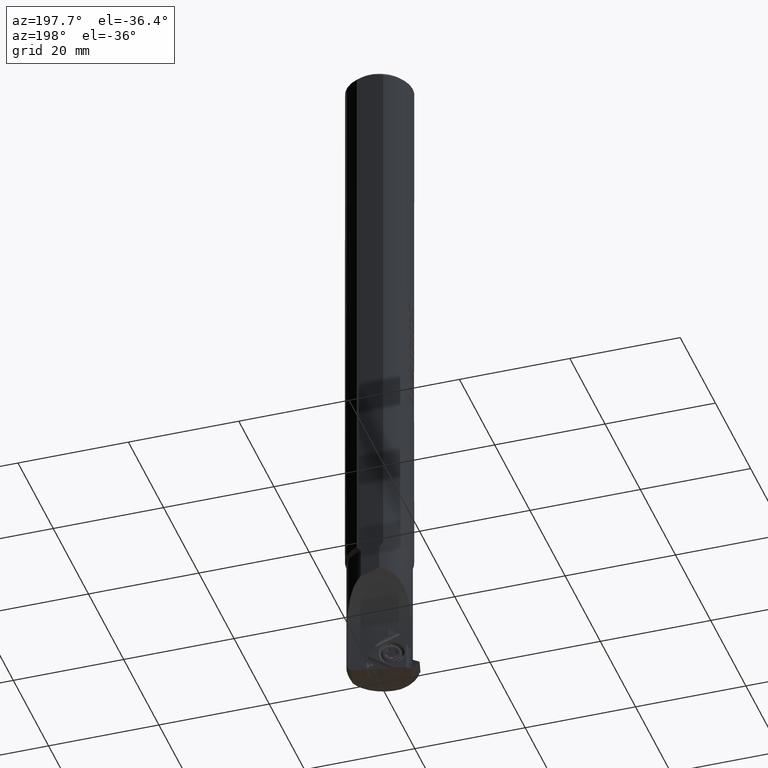
[diagram: clean part render]
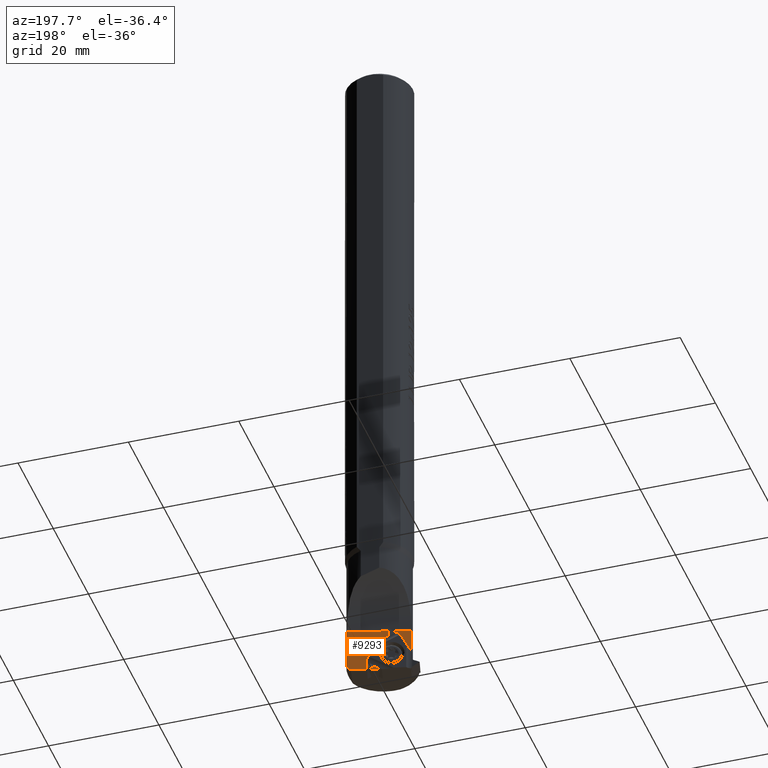
[diagram: same view with one face highlighted and labeled with its STEP entity id]
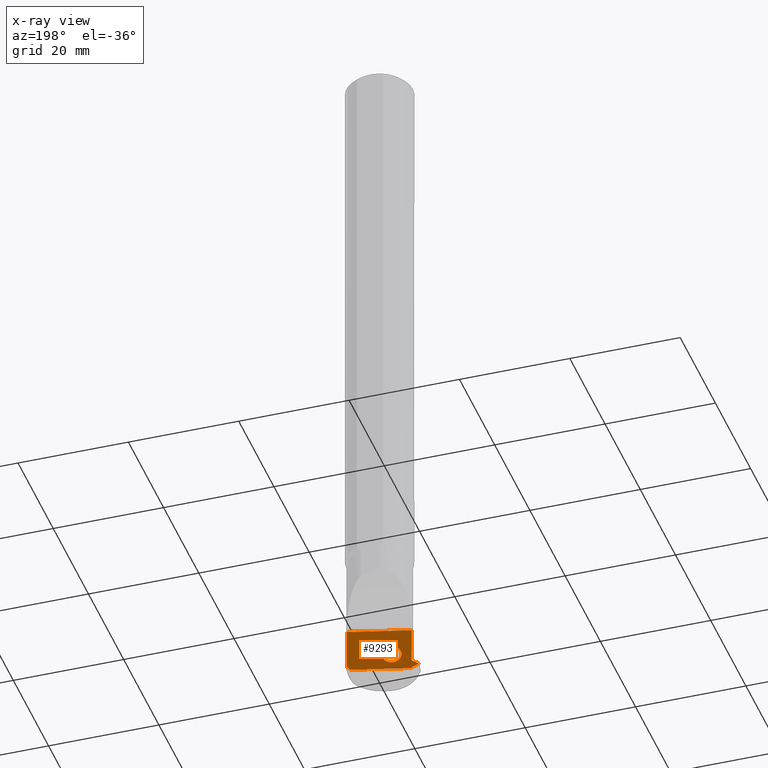
[diagram: x-ray of the same camera — body ghosted, the highlighted face saturated]
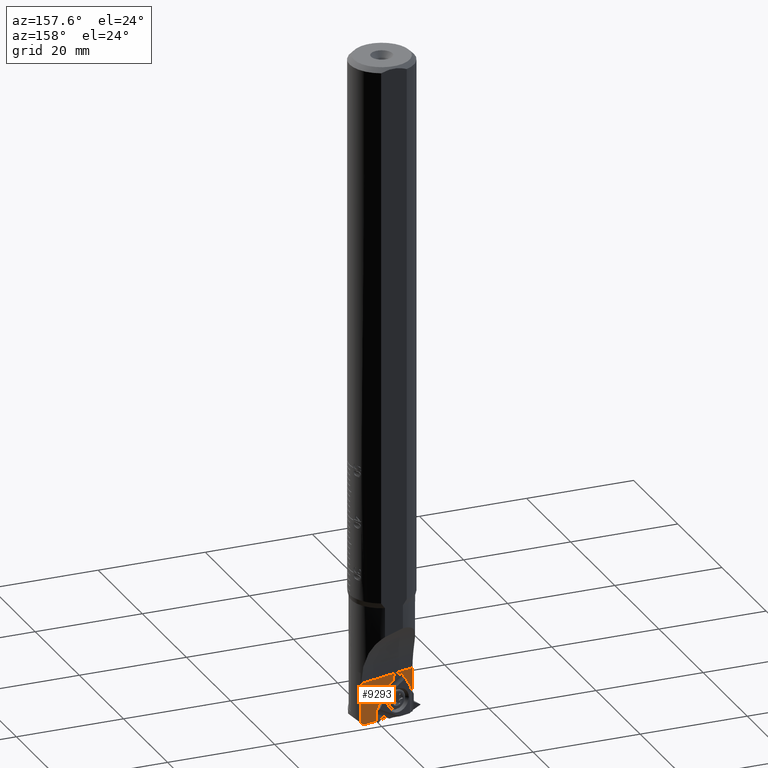
[diagram: same view with one face highlighted and labeled with its STEP entity id]
A machine part, auxiliary view. The second image highlights one B-rep face of the part: STEP entity #9293.
The next image is the same camera in x-ray: the body ghosted, the highlighted face saturated — about 0% of this face is hidden behind the body in this view.
A second angle (auxiliary view) of the same face is appended — the face is thin or edge-on in the first view.
In plain terms, the highlighted planar face has unit normal (-0.2588, 0.9658, -0.0175).
Its self-contained STEP definition (entity closure, byte-faithful):
#86 = CARTESIAN_POINT ( 'NONE',  ( 30.65048290106597761, 23.79634105421641976, 36.79752637946996430 ) ) ;
#303 = ORIENTED_EDGE ( 'NONE', *, *, #12917, .F. ) ;
#315 = CARTESIAN_POINT ( 'NONE',  ( 38.68063558771248012, 20.76890890480720486, 26.04055885097562140 ) ) ;
#806 = LINE ( 'NONE', #10661, #7931 ) ;
#950 = LINE ( 'NONE', #3364, #5093 ) ;
#1174 = ORIENTED_EDGE ( 'NONE', *, *, #13981, .T. ) ;
#1306 = CARTESIAN_POINT ( 'NONE',  ( 37.75355723844478462, 20.45820755690134973, 24.81848236560924548 ) ) ;
#1377 = CARTESIAN_POINT ( 'NONE',  ( 38.68063558771248012, 20.76890890480720486, 26.04055885097562140 ) ) ;
#1771 = CARTESIAN_POINT ( 'NONE',  ( 36.89458139732055741, 23.69800093955259968, 36.85162552101773059 ) ) ;
#1903 = CARTESIAN_POINT ( 'NONE',  ( 38.46805667772122206, 20.77271400825483028, 26.04042311527597420 ) ) ;
#2155 = DIRECTION ( 'NONE',  ( 0.6912755877565365248, -0.1986494037919022959, -0.6947492181679493228 ) ) ;
#2323 = CARTESIAN_POINT ( 'NONE',  ( 34.90434390809330978, 20.83656951940447044, 26.03839408990493709 ) ) ;
#2363 = ORIENTED_EDGE ( 'NONE', *, *, #2655, .F. ) ;
#2562 = VECTOR ( 'NONE', #3930, 1000.000000000000000 ) ;
#2655 = EDGE_CURVE ( 'NONE', #7638, #9593, #4763, .T. ) ;
#2755 = CARTESIAN_POINT ( 'NONE',  ( 38.23066000235045436, 20.66775292257381835, 25.63269269596020195 ) ) ;
#2963 = ORIENTED_EDGE ( 'NONE', *, *, #10069, .T. ) ;
#3082 = FACE_OUTER_BOUND ( 'NONE', #7227, .T. ) ;
#3218 = CARTESIAN_POINT ( 'NONE',  ( 38.46805667772122206, 20.77271400825483028, 26.04042311527597420 ) ) ;
#3364 = CARTESIAN_POINT ( 'NONE',  ( 38.05243024325883994, 23.67956425086173766, 36.86090556848949973 ) ) ;
#3513 = CARTESIAN_POINT ( 'NONE',  ( 32.77474816457174711, 20.87483883899301418, 26.03759465944243701 ) ) ;
#3810 = CARTESIAN_POINT ( 'NONE',  ( 38.46805667772122206, 20.77271400825483028, 26.04042311527597420 ) ) ;
#3856 = CARTESIAN_POINT ( 'NONE',  ( 30.65048290106597761, 25.63756680197776916, 43.66907441831950365 ) ) ;
#3860 = CARTESIAN_POINT ( 'NONE',  ( 32.72682020736456820, 23.76373754231285673, 36.81587907958542161 ) ) ;
#3874 = CARTESIAN_POINT ( 'NONE',  ( 37.51460755865939944, 20.57147372361769300, 25.22508240332736662 ) ) ;
#3930 = DIRECTION ( 'NONE',  ( 0.000000000000000000, 0.2588190451025146332, 0.9659258262890699775 ) ) ;
#4182 = CARTESIAN_POINT ( 'NONE',  ( 35.61587945084067286, 21.72143616571842628, 29.38874817706404841 ) ) ;
#4582 = DIRECTION ( 'NONE',  ( -0.000000000000000000, -0.2588190451025146332, -0.9659258262890699775 ) ) ;
#4763 = B_SPLINE_CURVE_WITH_KNOTS ( 'NONE', 3,
 ( #9707, #14612, #3874, #1306 ),
 .UNSPECIFIED., .F., .F.,
 ( 4, 4 ),
 ( 1.054574113658071855E-14, 0.001455076589710616085 ),
 .UNSPECIFIED. ) ;
#4767 =( BOUNDED_CURVE ( )  B_SPLINE_CURVE ( 3, ( #7126, #3513, #2323, #13298 ),
 .UNSPECIFIED., .F., .F. ) 
 B_SPLINE_CURVE_WITH_KNOTS ( ( 4, 4 ),
 ( 1.319898180149722933, 1.339868805788378525 ),
 .UNSPECIFIED. ) 
 CURVE ( )  GEOMETRIC_REPRESENTATION_ITEM ( )  RATIONAL_B_SPLINE_CURVE ( ( 1.000000000000000000, 0.9999667647854485475, 0.9999667647854485475, 1.000000000000000000 ) ) 
 REPRESENTATION_ITEM ( '' )  );
#4912 = VERTEX_POINT ( 'NONE', #14171 ) ;
#4963 = CARTESIAN_POINT ( 'NONE',  ( 37.03905779912916785, 20.79831009008059794, 26.03957560530714588 ) ) ;
#5093 = VECTOR ( 'NONE', #2155, 999.9999999999998863 ) ;
#5239 = ORIENTED_EDGE ( 'NONE', *, *, #15765, .F. ) ;
#5491 = DIRECTION ( 'NONE',  ( 0.000000000000000000, 0.2588190451025146332, 0.9659258262890699775 ) ) ;
#5688 = VERTEX_POINT ( 'NONE', #3218 ) ;
#5893 =( BOUNDED_CURVE ( )  B_SPLINE_CURVE ( 3, ( #12750, #11628, #10274, #1771 ),
 .UNSPECIFIED., .F., .F. ) 
 B_SPLINE_CURVE_WITH_KNOTS ( ( 4, 4 ),
 ( 1.773701674943848783, 1.776935061401505589 ),
 .UNSPECIFIED. ) 
 CURVE ( )  GEOMETRIC_REPRESENTATION_ITEM ( )  RATIONAL_B_SPLINE_CURVE ( ( 1.000000000000000000, 0.9999991287678576812, 0.9999991287678576812, 1.000000000000000000 ) ) 
 REPRESENTATION_ITEM ( '' )  );
#6206 = CARTESIAN_POINT ( 'NONE',  ( 38.68063583724578791, 23.49903904656623155, 36.22954326812590864 ) ) ;
#6317 = ORIENTED_EDGE ( 'NONE', *, *, #15651, .F. ) ;
#6408 = VERTEX_POINT ( 'NONE', #6206 ) ;
#6515 = DIRECTION ( 'NONE',  ( 0.01745240643727646174, 0.9657787111071595154, -0.2587796257083273543 ) ) ;
#6637 = VERTEX_POINT ( 'NONE', #15126 ) ;
#6657 = ORIENTED_EDGE ( 'NONE', *, *, #14423, .F. ) ;
#6803 = CARTESIAN_POINT ( 'NONE',  ( 38.53891631437023335, 20.77144562550689955, 26.04046794057058634 ) ) ;
#7126 = CARTESIAN_POINT ( 'NONE',  ( 30.65048290106597761, 20.91311423317857177, 26.03717739361114170 ) ) ;
#7227 = EDGE_LOOP ( 'NONE', ( #6317, #13338, #2963, #8782, #303, #1174, #2363, #5239, #13452 ) ) ;
#7300 = LINE ( 'NONE', #3856, #2562 ) ;
#7638 = VERTEX_POINT ( 'NONE', #4963 ) ;
#7931 = VECTOR ( 'NONE', #4582, 1000.000000000000000 ) ;
#8425 = CIRCLE ( 'NONE', #14067, 1.713069664607551612 ) ;
#8782 = ORIENTED_EDGE ( 'NONE', *, *, #14589, .T. ) ;
#8975 = DIRECTION ( 'NONE',  ( 0.000000000000000000, 0.2588190451025151884, 0.9659258262890698665 ) ) ;
#9292 = CARTESIAN_POINT ( 'NONE',  ( 37.75355723844478462, 20.45820755690134973, 24.81848236560924548 ) ) ;
#9293 = ADVANCED_FACE ( 'NONE', ( #10223, #3082 ), #12694, .T. ) ;
#9311 = DIRECTION ( 'NONE',  ( 0.01745240643727646521, 0.9657787111071595154, -0.2587796257083274098 ) ) ;
#9593 = VERTEX_POINT ( 'NONE', #9292 ) ;
#9707 = CARTESIAN_POINT ( 'NONE',  ( 37.03905779912916785, 20.79831009008059794, 26.03957560530714588 ) ) ;
#9744 = B_SPLINE_CURVE_WITH_KNOTS ( 'NONE', 3,
 ( #3810, #2755, #14715, #12544 ),
 .UNSPECIFIED., .F., .F.,
 ( 4, 4 ),
 ( 1.280620760786148360E-15, 0.001450021707548432293 ),
 .UNSPECIFIED. ) ;
#10069 = EDGE_CURVE ( 'NONE', #10416, #6408, #950, .T. ) ;
#10152 = VERTEX_POINT ( 'NONE', #14263 ) ;
#10182 =( BOUNDED_CURVE ( )  B_SPLINE_CURVE ( 3, ( #14840, #13700, #3860, #86 ),
 .UNSPECIFIED., .F., .T. ) 
 B_SPLINE_CURVE_WITH_KNOTS ( ( 4, 4 ),
 ( 4.943767066847758684, 4.963287127029863299 ),
 .UNSPECIFIED. ) 
 CURVE ( )  GEOMETRIC_REPRESENTATION_ITEM ( )  RATIONAL_B_SPLINE_CURVE ( ( 1.000000000000000000, 0.9999682475229320078, 0.9999682475229320078, 1.000000000000000000 ) ) 
 REPRESENTATION_ITEM ( '' )  );
#10223 = FACE_BOUND ( 'NONE', #10834, .T. ) ;
#10258 = CARTESIAN_POINT ( 'NONE',  ( 38.60977595104136384, 20.77017725759743527, 26.04051318580425090 ) ) ;
#10274 = CARTESIAN_POINT ( 'NONE',  ( 37.28040142082490860, 23.69186038033157260, 36.85472880432173071 ) ) ;
#10416 = VERTEX_POINT ( 'NONE', #13102 ) ;
#10661 = CARTESIAN_POINT ( 'NONE',  ( 38.68063583724578791, 25.50217603037810221, 43.70535226623226066 ) ) ;
#10834 = EDGE_LOOP ( 'NONE', ( #6657 ) ) ;
#11212 = AXIS2_PLACEMENT_3D ( 'NONE', #11507, #9311, #5491 ) ;
#11507 = CARTESIAN_POINT ( 'NONE',  ( 38.68063583724575238, 25.50217603037810221, 43.70535226623226066 ) ) ;
#11628 = CARTESIAN_POINT ( 'NONE',  ( 37.66635137238978359, 23.68571481208040197, 36.85782215617401647 ) ) ;
#12544 = CARTESIAN_POINT ( 'NONE',  ( 37.75355723844478462, 20.45820755690134973, 24.81848236560924548 ) ) ;
#12694 = PLANE ( 'NONE',  #11212 ) ;
#12750 = CARTESIAN_POINT ( 'NONE',  ( 38.05243024325894652, 23.67956425086174121, 36.86090556848952104 ) ) ;
#12848 = B_SPLINE_CURVE_WITH_KNOTS ( 'NONE', 3,
 ( #1903, #6803, #10258, #315 ),
 .UNSPECIFIED., .F., .F.,
 ( 4, 4 ),
 ( 0.000000000000000000, 0.9999988261629345621 ),
 .UNSPECIFIED. ) ;
#12917 = EDGE_CURVE ( 'NONE', #5688, #14301, #12848, .T. ) ;
#13102 = CARTESIAN_POINT ( 'NONE',  ( 38.05243024325894652, 23.67956425086174121, 36.86090556848952104 ) ) ;
#13298 = CARTESIAN_POINT ( 'NONE',  ( 37.03905779912916785, 20.79831009008059794, 26.03957560530714588 ) ) ;
#13338 = ORIENTED_EDGE ( 'NONE', *, *, #14404, .F. ) ;
#13452 = ORIENTED_EDGE ( 'NONE', *, *, #14648, .T. ) ;
#13700 = CARTESIAN_POINT ( 'NONE',  ( 34.80825246341277790, 23.73095646321112184, 36.83391269938011447 ) ) ;
#13981 = EDGE_CURVE ( 'NONE', #5688, #9593, #9744, .T. ) ;
#14067 = AXIS2_PLACEMENT_3D ( 'NONE', #4182, #6515, #8975 ) ;
#14086 = VERTEX_POINT ( 'NONE', #14374 ) ;
#14171 = CARTESIAN_POINT ( 'NONE',  ( 30.65048290106597761, 20.91311423317857177, 26.03717739361114170 ) ) ;
#14263 = CARTESIAN_POINT ( 'NONE',  ( 30.65048290106597761, 23.79634105421641976, 36.79752637946996430 ) ) ;
#14301 = VERTEX_POINT ( 'NONE', #1377 ) ;
#14374 = CARTESIAN_POINT ( 'NONE',  ( 36.89458139732055741, 23.69800093955259968, 36.85162552101773059 ) ) ;
#14404 = EDGE_CURVE ( 'NONE', #10416, #14086, #5893, .T. ) ;
#14423 = EDGE_CURVE ( 'NONE', #6637, #6637, #8425, .T. ) ;
#14589 = EDGE_CURVE ( 'NONE', #6408, #14301, #806, .T. ) ;
#14612 = CARTESIAN_POINT ( 'NONE',  ( 37.27626960478163909, 20.68481971605717362, 25.63202161022440251 ) ) ;
#14648 = EDGE_CURVE ( 'NONE', #4912, #10152, #7300, .T. ) ;
#14715 = CARTESIAN_POINT ( 'NONE',  ( 37.99235515182910206, 20.56293965585158290, 25.22545269601371487 ) ) ;
#14840 = CARTESIAN_POINT ( 'NONE',  ( 36.89458139732055741, 23.69800093955259968, 36.85162552101773059 ) ) ;
#15126 = CARTESIAN_POINT ( 'NONE',  ( 35.61587945084067286, 22.16481122050623753, 31.04344640834083435 ) ) ;
#15651 = EDGE_CURVE ( 'NONE', #14086, #10152, #10182, .T. ) ;
#15765 = EDGE_CURVE ( 'NONE', #4912, #7638, #4767, .T. ) ;